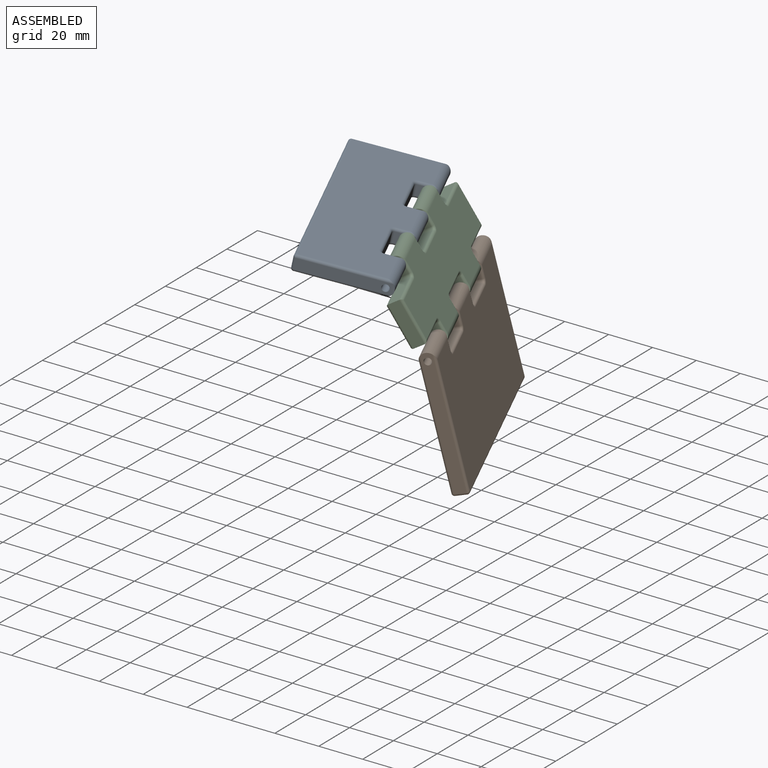
[diagram: assembled view]
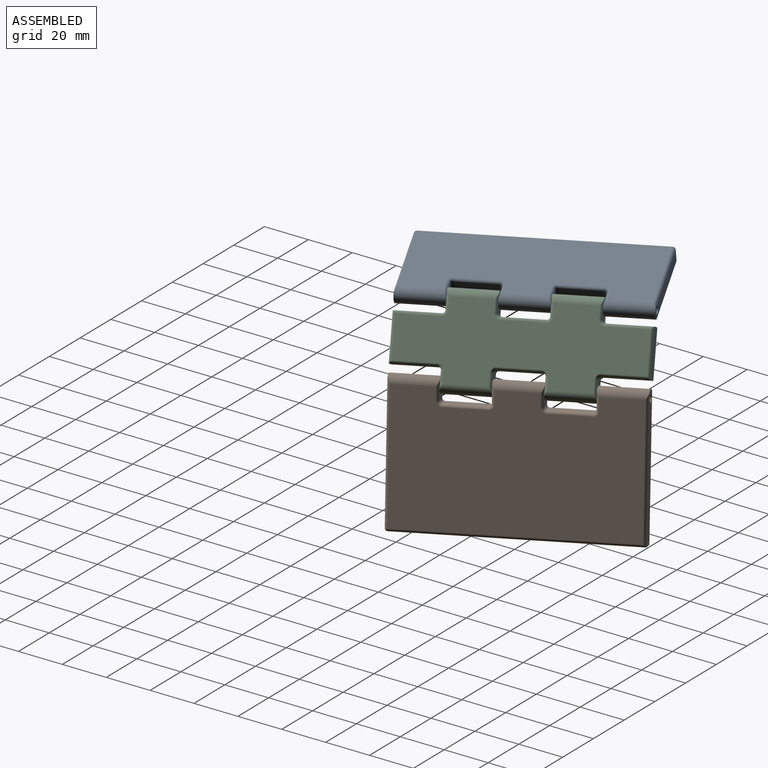
[diagram: assembled view, second angle]
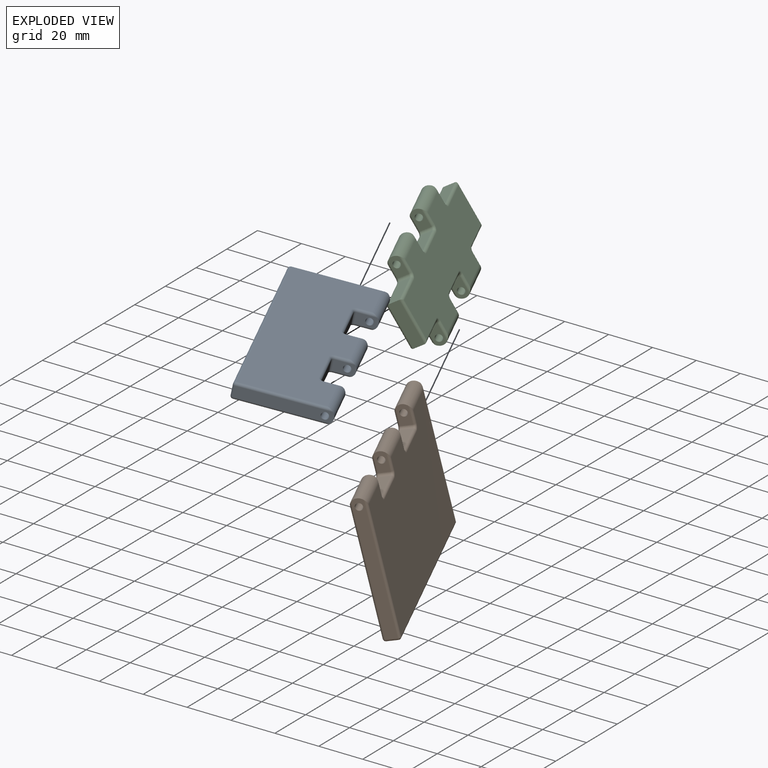
[diagram: exploded view]
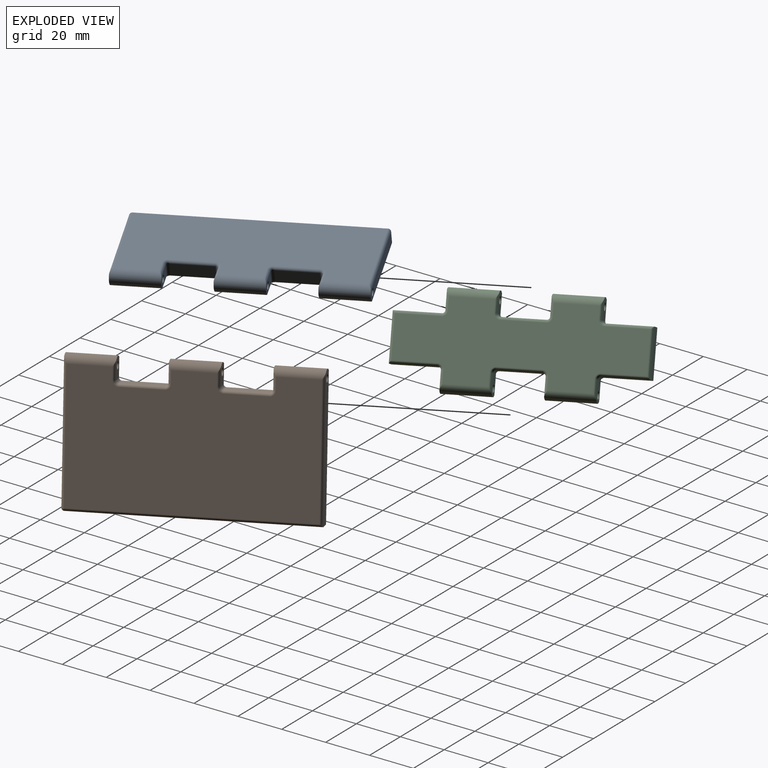
[diagram: exploded view, second angle]
ASSEMBLY  parts=3 mates=2
PART A: 53 faces, bbox 40x100x7.2 mm
  f0: plane 97.6x4.8mm, normal (1,0,0), area 468.5mm2, adj f41,f42,f46,f47
  f1: plane 38.8x4.8mm, normal (0,1,0), area 176.8mm2, adj f13,f38,f40,f41,f52
  f2: plane 8.8x4.8mm, normal (0,-1,0), area 32.8mm2, adj f13,f19,f23,f25,f52
  f3: plane 17.6x4.8mm, normal (-1,0,0), area 84.5mm2, adj f17,f18,f22,f23
  f4: plane 8.8x4.8mm, normal (0,1,0), area 32.8mm2, adj f12,f14,f16,f17,f51
  f5: plane 8.8x4.8mm, normal (0,-1,0), area 32.8mm2, adj f12,f31,f35,f37,f51
  f6: plane 17.6x4.8mm, normal (-1,0,0), area 84.5mm2, adj f29,f30,f34,f35
  f7: plane 8.8x4.8mm, normal (0,1,0), area 32.8mm2, adj f11,f26,f28,f29,f50
  f8: plane 38.8x4.8mm, normal (0,-1,0), area 176.8mm2, adj f11,f43,f47,f49,f50
  f9: plane 97.6x35.2mm, normal (0,0,1), area 3100mm2, adj f11,f12,f13,f16,f20,f22,f24,f25
  f10: plane 97.6x35.2mm, normal (0,0,-1), area 3100mm2, adj f11,f12,f13,f14,f15,f18,f19,f21
  f11: cylinder r=3.6mm len=20mm, axis (0,1,0), area 220.6mm2, adj f7,f8,f9,f10,f26,f28,f43,f49
  f12: cylinder r=3.6mm len=20mm, axis (0,1,0), area 220.6mm2, adj f4,f5,f9,f10,f14,f16,f31,f37
  f13: cylinder r=3.6mm len=20mm, axis (0,1,0), area 220.6mm2, adj f1,f2,f9,f10,f19,f25,f38,f40
  f14: cylinder r=1.2mm len=7.88mm, axis (-1,0,0), area 12.6mm2, adj f4,f10,f12,f15
  f15: torus R=2.4mm, axis (0,0,1), area 4.8mm2, adj f10,f14,f17,f18
  f16: cylinder r=1.2mm len=7.88mm, axis (1,0,0), area 12.6mm2, adj f4,f9,f12,f20
  f17: cylinder r=1.2mm len=4.8mm, axis (0,0,1), area 9mm2, adj f3,f4,f15,f20
  f18: cylinder r=1.2mm len=17.6mm, axis (0,-1,0), area 33.2mm2, adj f3,f10,f15,f21
  f19: cylinder r=1.2mm len=7.88mm, axis (1,0,0), area 12.6mm2, adj f2,f10,f13,f21
  f20: torus R=2.4mm, axis (0,0,1), area 4.8mm2, adj f9,f16,f17,f22
  f21: torus R=2.4mm, axis (0,0,1), area 4.8mm2, adj f10,f18,f19,f23
  f22: cylinder r=1.2mm len=17.6mm, axis (0,1,0), area 33.2mm2, adj f3,f9,f20,f24
  f23: cylinder r=1.2mm len=4.8mm, axis (0,0,1), area 9mm2, adj f2,f3,f21,f24
  f24: torus R=2.4mm, axis (0,0,1), area 4.8mm2, adj f9,f22,f23,f25
  f25: cylinder r=1.2mm len=7.88mm, axis (-1,0,0), area 12.6mm2, adj f2,f9,f13,f24
  f26: cylinder r=1.2mm len=7.88mm, axis (-1,0,0), area 12.6mm2, adj f7,f10,f11,f27
  f27: torus R=2.4mm, axis (0,0,1), area 4.8mm2, adj f10,f26,f29,f30
  f28: cylinder r=1.2mm len=7.88mm, axis (1,0,0), area 12.6mm2, adj f7,f9,f11,f32
  f29: cylinder r=1.2mm len=4.8mm, axis (0,0,1), area 9mm2, adj f6,f7,f27,f32
  f30: cylinder r=1.2mm len=17.6mm, axis (0,-1,0), area 33.2mm2, adj f6,f10,f27,f33
  f31: cylinder r=1.2mm len=7.88mm, axis (1,0,0), area 12.6mm2, adj f5,f10,f12,f33
  f32: torus R=2.4mm, axis (0,0,1), area 4.8mm2, adj f9,f28,f29,f34
  f33: torus R=2.4mm, axis (0,0,1), area 4.8mm2, adj f10,f30,f31,f35
  f34: cylinder r=1.2mm len=17.6mm, axis (0,1,0), area 33.2mm2, adj f6,f9,f32,f36
  f35: cylinder r=1.2mm len=4.8mm, axis (0,0,1), area 9mm2, adj f5,f6,f33,f36
  f36: torus R=2.4mm, axis (0,0,1), area 4.8mm2, adj f9,f34,f35,f37
  f37: cylinder r=1.2mm len=7.88mm, axis (-1,0,0), area 12.6mm2, adj f5,f9,f12,f36
  f38: cylinder r=1.2mm len=37.88mm, axis (-1,0,0), area 69.1mm2, adj f1,f10,f13,f39
  f39: sphere r=1.2mm, area 2.3mm2, adj f38,f41,f42
  f40: cylinder r=1.2mm len=37.88mm, axis (1,0,0), area 69.1mm2, adj f1,f9,f13,f44
  f41: cylinder r=1.2mm len=4.8mm, axis (0,0,-1), area 9mm2, adj f0,f1,f39,f44
  f42: cylinder r=1.2mm len=97.6mm, axis (0,1,0), area 184mm2, adj f0,f10,f39,f45
  f43: cylinder r=1.2mm len=37.88mm, axis (1,0,0), area 69.1mm2, adj f8,f10,f11,f45
  f44: sphere r=1.2mm, area 2.3mm2, adj f40,f41,f46
  f45: sphere r=1.2mm, area 2.3mm2, adj f42,f43,f47
  f46: cylinder r=1.2mm len=97.6mm, axis (0,-1,0), area 184mm2, adj f0,f9,f44,f48
  f47: cylinder r=1.2mm len=4.8mm, axis (0,0,-1), area 9mm2, adj f0,f8,f45,f48
  f48: sphere r=1.2mm, area 2.3mm2, adj f46,f47,f49
  f49: cylinder r=1.2mm len=37.88mm, axis (-1,0,0), area 69.1mm2, adj f8,f9,f11,f48
  f50: cylinder r=1.6mm len=20mm, axis (0,-1,0), area 201.1mm2, adj f7,f8
  f51: cylinder r=1.6mm len=20mm, axis (0,-1,0), area 201.1mm2, adj f4,f5
  f52: cylinder r=1.6mm len=20mm, axis (0,-1,0), area 201.1mm2, adj f1,f2
PART B: 50 faces, bbox 60x100x7.2 mm
  f0: plane 8.8x4.8mm, normal (0,1,0), area 32.8mm2, adj f13,f16,f26,f30,f31
  f1: plane 17.6x4.8mm, normal (1,0,0), area 84.5mm2, adj f29,f30,f34,f35
  f2: plane 8.8x4.8mm, normal (0,-1,0), area 32.8mm2, adj f12,f15,f28,f34,f37
  f3: plane 8.8x4.8mm, normal (0,1,0), area 32.8mm2, adj f12,f15,f38,f42,f43
  f4: plane 17.6x4.8mm, normal (1,0,0), area 84.5mm2, adj f41,f42,f46,f47
  f5: plane 8.8x4.8mm, normal (0,-1,0), area 32.8mm2, adj f11,f14,f40,f46,f49
  f6: plane 60x4.8mm, normal (0,1,0), area 278.6mm2, adj f7,f11,f14,f17,f21
  f7: plane 98.8x4.8mm, normal (-1,0,0), area 474.2mm2, adj f6,f19,f22,f23
  f8: plane 58.8x4.8mm, normal (0,-1,0), area 272.8mm2, adj f13,f16,f18,f22,f25
  f9: plane 97.6x55.2mm, normal (0,0,1), area 5052mm2, adj f11,f12,f13,f21,f23,f25,f31,f33
  f10: plane 97.6x55.2mm, normal (0,0,-1), area 5052mm2, adj f11,f12,f13,f17,f18,f19,f26,f27
  f11: cylinder r=3.6mm len=20mm, axis (0,-1,0), area 220.6mm2, adj f5,f6,f9,f10,f17,f21,f40,f49
  f12: cylinder r=3.6mm len=20mm, axis (0,-1,0), area 220.6mm2, adj f2,f3,f9,f10,f28,f37,f38,f43
  f13: cylinder r=3.6mm len=20mm, axis (0,-1,0), area 220.6mm2, adj f0,f8,f9,f10,f18,f25,f26,f31
  f14: cylinder r=1.6mm len=20mm, axis (0,-1,0), area 201.1mm2, adj f5,f6
  f15: cylinder r=1.6mm len=20mm, axis (0,-1,0), area 201.1mm2, adj f2,f3
  f16: cylinder r=1.6mm len=20mm, axis (0,-1,0), area 201.1mm2, adj f0,f8
  f17: cylinder r=1.2mm len=59.08mm, axis (-1,0,0), area 108.3mm2, adj f6,f10,f11,f19
  f18: cylinder r=1.2mm len=57.88mm, axis (1,0,0), area 106.8mm2, adj f8,f10,f13,f20
  f19: cylinder r=1.2mm len=98.8mm, axis (0,-1,0), area 185.4mm2, adj f7,f10,f17,f20
  f20: sphere r=1.2mm, area 2.3mm2, adj f18,f19,f22
  f21: cylinder r=1.2mm len=59.08mm, axis (1,0,0), area 108.3mm2, adj f6,f9,f11,f23
  f22: cylinder r=1.2mm len=4.8mm, axis (0,0,-1), area 9mm2, adj f7,f8,f20,f24
  f23: cylinder r=1.2mm len=98.8mm, axis (0,1,0), area 185.4mm2, adj f7,f9,f21,f24
  f24: sphere r=1.2mm, area 2.3mm2, adj f22,f23,f25
  f25: cylinder r=1.2mm len=57.88mm, axis (-1,0,0), area 106.8mm2, adj f8,f9,f13,f24
  f26: cylinder r=1.2mm len=7.88mm, axis (-1,0,0), area 12.6mm2, adj f0,f10,f13,f27
  f27: torus R=2.4mm, axis (0,0,1), area 4.8mm2, adj f10,f26,f29,f30
  f28: cylinder r=1.2mm len=7.88mm, axis (1,0,0), area 12.6mm2, adj f2,f10,f12,f32
  f29: cylinder r=1.2mm len=17.6mm, axis (0,1,0), area 33.2mm2, adj f1,f10,f27,f32
  f30: cylinder r=1.2mm len=4.8mm, axis (0,0,1), area 9mm2, adj f0,f1,f27,f33
  f31: cylinder r=1.2mm len=7.88mm, axis (1,0,0), area 12.6mm2, adj f0,f9,f13,f33
  f32: torus R=2.4mm, axis (0,0,1), area 4.8mm2, adj f10,f28,f29,f34
  f33: torus R=2.4mm, axis (0,0,1), area 4.8mm2, adj f9,f30,f31,f35
  f34: cylinder r=1.2mm len=4.8mm, axis (0,0,1), area 9mm2, adj f1,f2,f32,f36
  f35: cylinder r=1.2mm len=17.6mm, axis (0,-1,0), area 33.2mm2, adj f1,f9,f33,f36
  f36: torus R=2.4mm, axis (0,0,1), area 4.8mm2, adj f9,f34,f35,f37
  f37: cylinder r=1.2mm len=7.88mm, axis (-1,0,0), area 12.6mm2, adj f2,f9,f12,f36
  f38: cylinder r=1.2mm len=7.88mm, axis (-1,0,0), area 12.6mm2, adj f3,f10,f12,f39
  f39: torus R=2.4mm, axis (0,0,1), area 4.8mm2, adj f10,f38,f41,f42
  f40: cylinder r=1.2mm len=7.88mm, axis (1,0,0), area 12.6mm2, adj f5,f10,f11,f44
  f41: cylinder r=1.2mm len=17.6mm, axis (0,1,0), area 33.2mm2, adj f4,f10,f39,f44
  f42: cylinder r=1.2mm len=4.8mm, axis (0,0,1), area 9mm2, adj f3,f4,f39,f45
  f43: cylinder r=1.2mm len=7.88mm, axis (1,0,0), area 12.6mm2, adj f3,f9,f12,f45
  f44: torus R=2.4mm, axis (0,0,1), area 4.8mm2, adj f10,f40,f41,f46
  f45: torus R=2.4mm, axis (0,0,1), area 4.8mm2, adj f9,f42,f43,f47
  f46: cylinder r=1.2mm len=4.8mm, axis (0,0,1), area 9mm2, adj f4,f5,f44,f48
  f47: cylinder r=1.2mm len=17.6mm, axis (0,-1,0), area 33.2mm2, adj f4,f9,f45,f48
  f48: torus R=2.4mm, axis (0,0,1), area 4.8mm2, adj f9,f46,f47,f49
  f49: cylinder r=1.2mm len=7.88mm, axis (-1,0,0), area 12.6mm2, adj f5,f9,f11,f48
PART C: 82 faces, bbox 40x100x7.2 mm
  f0: plane 18.8x4.8mm, normal (-1,0,0), area 90.2mm2, adj f8,f19,f25,f30
  f1: plane 8.8x4.8mm, normal (0,1,0), area 32.8mm2, adj f18,f24,f25,f74,f81
  f2: plane 8.8x4.8mm, normal (0,-1,0), area 32.8mm2, adj f67,f70,f73,f74,f81
  f3: plane 17.6x4.8mm, normal (-1,0,0), area 84.5mm2, adj f63,f68,f69,f73
  f4: plane 8.8x4.8mm, normal (0,1,0), area 32.8mm2, adj f62,f63,f64,f75,f80
  f5: plane 8.8x4.8mm, normal (0,-1,0), area 32.8mm2, adj f34,f38,f39,f75,f80
  f6: plane 18.8x4.8mm, normal (-1,0,0), area 90.2mm2, adj f7,f35,f38,f44
  f7: plane 20x4.8mm, normal (0,-1,0), area 96mm2, adj f6,f17,f37,f47
  f8: plane 20x4.8mm, normal (0,1,0), area 96mm2, adj f0,f11,f20,f32
  f9: plane 97.6x32.8mm, normal (0,0,1), area 2262.7mm2, adj f24,f27,f29,f30,f31,f32,f33,f39
  f10: plane 97.6x32.8mm, normal (0,0,-1), area 2262.7mm2, adj f18,f19,f20,f21,f22,f23,f26,f34
  f11: plane 18.8x4.8mm, normal (1,0,0), area 90.2mm2, adj f8,f22,f28,f33
  f12: plane 8.8x4.8mm, normal (0,1,0), area 32.8mm2, adj f23,f28,f29,f76,f79
  f13: plane 8.8x4.8mm, normal (0,-1,0), area 32.8mm2, adj f50,f52,f53,f76,f79
  f14: plane 17.6x4.8mm, normal (1,0,0), area 84.5mm2, adj f53,f54,f58,f59
  f15: plane 8.8x4.8mm, normal (0,1,0), area 32.8mm2, adj f55,f59,f61,f77,f78
  f16: plane 8.8x4.8mm, normal (0,-1,0), area 32.8mm2, adj f40,f45,f46,f77,f78
  f17: plane 18.8x4.8mm, normal (1,0,0), area 90.2mm2, adj f7,f41,f46,f49
  f18: cylinder r=1.2mm len=7.88mm, axis (-1,0,0), area 12.6mm2, adj f1,f10,f21,f74
  f19: cylinder r=1.2mm len=18.8mm, axis (0,-1,0), area 34.6mm2, adj f0,f10,f20,f21
  f20: cylinder r=1.2mm len=20mm, axis (-1,0,0), area 36.1mm2, adj f8,f10,f19,f22
  f21: torus R=2.4mm, axis (0,0,1), area 4.8mm2, adj f10,f18,f19,f25
  f22: cylinder r=1.2mm len=18.8mm, axis (0,-1,0), area 34.6mm2, adj f10,f11,f20,f26
  f23: cylinder r=1.2mm len=7.88mm, axis (1,0,0), area 12.6mm2, adj f10,f12,f26,f76
  f24: cylinder r=1.2mm len=7.88mm, axis (1,0,0), area 12.6mm2, adj f1,f9,f27,f74
  f25: cylinder r=1.2mm len=4.8mm, axis (0,0,1), area 9mm2, adj f0,f1,f21,f27
  f26: torus R=2.4mm, axis (0,0,1), area 4.8mm2, adj f10,f22,f23,f28
  f27: torus R=2.4mm, axis (0,0,1), area 4.8mm2, adj f9,f24,f25,f30
  f28: cylinder r=1.2mm len=4.8mm, axis (0,0,1), area 9mm2, adj f11,f12,f26,f31
  f29: cylinder r=1.2mm len=7.88mm, axis (-1,0,0), area 12.6mm2, adj f9,f12,f31,f76
  f30: cylinder r=1.2mm len=18.8mm, axis (0,1,0), area 34.6mm2, adj f0,f9,f27,f32
  f31: torus R=2.4mm, axis (0,0,1), area 4.8mm2, adj f9,f28,f29,f33
  f32: cylinder r=1.2mm len=20mm, axis (1,0,0), area 36.1mm2, adj f8,f9,f30,f33
  f33: cylinder r=1.2mm len=18.8mm, axis (0,1,0), area 34.6mm2, adj f9,f11,f31,f32
  f34: cylinder r=1.2mm len=7.88mm, axis (1,0,0), area 12.6mm2, adj f5,f10,f36,f75
  f35: cylinder r=1.2mm len=18.8mm, axis (0,-1,0), area 34.6mm2, adj f6,f10,f36,f37
  f36: torus R=2.4mm, axis (0,0,1), area 4.8mm2, adj f10,f34,f35,f38
  f37: cylinder r=1.2mm len=20mm, axis (1,0,0), area 36.1mm2, adj f7,f10,f35,f41
  f38: cylinder r=1.2mm len=4.8mm, axis (0,0,1), area 9mm2, adj f5,f6,f36,f42
  f39: cylinder r=1.2mm len=7.88mm, axis (-1,0,0), area 12.6mm2, adj f5,f9,f42,f75
  f40: cylinder r=1.2mm len=7.88mm, axis (-1,0,0), area 12.6mm2, adj f10,f16,f43,f77
  f41: cylinder r=1.2mm len=18.8mm, axis (0,-1,0), area 34.6mm2, adj f10,f17,f37,f43
  f42: torus R=2.4mm, axis (0,0,1), area 4.8mm2, adj f9,f38,f39,f44
  f43: torus R=2.4mm, axis (0,0,1), area 4.8mm2, adj f10,f40,f41,f46
  f44: cylinder r=1.2mm len=18.8mm, axis (0,1,0), area 34.6mm2, adj f6,f9,f42,f47
  f45: cylinder r=1.2mm len=7.88mm, axis (1,0,0), area 12.6mm2, adj f9,f16,f48,f77
  f46: cylinder r=1.2mm len=4.8mm, axis (0,0,1), area 9mm2, adj f16,f17,f43,f48
  f47: cylinder r=1.2mm len=20mm, axis (-1,0,0), area 36.1mm2, adj f7,f9,f44,f49
  f48: torus R=2.4mm, axis (0,0,1), area 4.8mm2, adj f9,f45,f46,f49
  f49: cylinder r=1.2mm len=18.8mm, axis (0,1,0), area 34.6mm2, adj f9,f17,f47,f48
  f50: cylinder r=1.2mm len=7.88mm, axis (-1,0,0), area 12.6mm2, adj f10,f13,f51,f76
  f51: torus R=2.4mm, axis (0,0,1), area 4.8mm2, adj f10,f50,f53,f54
  f52: cylinder r=1.2mm len=7.88mm, axis (1,0,0), area 12.6mm2, adj f9,f13,f56,f76
  f53: cylinder r=1.2mm len=4.8mm, axis (0,0,1), area 9mm2, adj f13,f14,f51,f56
  f54: cylinder r=1.2mm len=17.6mm, axis (0,-1,0), area 33.2mm2, adj f10,f14,f51,f57
  f55: cylinder r=1.2mm len=7.88mm, axis (1,0,0), area 12.6mm2, adj f10,f15,f57,f77
  f56: torus R=2.4mm, axis (0,0,1), area 4.8mm2, adj f9,f52,f53,f58
  f57: torus R=2.4mm, axis (0,0,1), area 4.8mm2, adj f10,f54,f55,f59
  f58: cylinder r=1.2mm len=17.6mm, axis (0,1,0), area 33.2mm2, adj f9,f14,f56,f60
  f59: cylinder r=1.2mm len=4.8mm, axis (0,0,1), area 9mm2, adj f14,f15,f57,f60
  f60: torus R=2.4mm, axis (0,0,1), area 4.8mm2, adj f9,f58,f59,f61
  f61: cylinder r=1.2mm len=7.88mm, axis (-1,0,0), area 12.6mm2, adj f9,f15,f60,f77
  f62: cylinder r=1.2mm len=7.88mm, axis (1,0,0), area 12.6mm2, adj f4,f9,f65,f75
  f63: cylinder r=1.2mm len=4.8mm, axis (0,0,1), area 9mm2, adj f3,f4,f65,f66
  f64: cylinder r=1.2mm len=7.88mm, axis (-1,0,0), area 12.6mm2, adj f4,f10,f66,f75
  f65: torus R=2.4mm, axis (0,0,1), area 4.8mm2, adj f9,f62,f63,f68
  f66: torus R=2.4mm, axis (0,0,1), area 4.8mm2, adj f10,f63,f64,f69
  f67: cylinder r=1.2mm len=7.88mm, axis (-1,0,0), area 12.6mm2, adj f2,f9,f71,f74
  f68: cylinder r=1.2mm len=17.6mm, axis (0,1,0), area 33.2mm2, adj f3,f9,f65,f71
  f69: cylinder r=1.2mm len=17.6mm, axis (0,-1,0), area 33.2mm2, adj f3,f10,f66,f72
  f70: cylinder r=1.2mm len=7.88mm, axis (1,0,0), area 12.6mm2, adj f2,f10,f72,f74
  f71: torus R=2.4mm, axis (0,0,1), area 4.8mm2, adj f9,f67,f68,f73
  f72: torus R=2.4mm, axis (0,0,1), area 4.8mm2, adj f10,f69,f70,f73
  f73: cylinder r=1.2mm len=4.8mm, axis (0,0,1), area 9mm2, adj f2,f3,f71,f72
  f74: cylinder r=3.6mm len=20mm, axis (0,1,0), area 220.6mm2, adj f1,f2,f9,f10,f18,f24,f67,f70
  f75: cylinder r=3.6mm len=20mm, axis (0,1,0), area 220.6mm2, adj f4,f5,f9,f10,f34,f39,f62,f64
  f76: cylinder r=3.6mm len=20mm, axis (0,1,0), area 220.6mm2, adj f9,f10,f12,f13,f23,f29,f50,f52
  f77: cylinder r=3.6mm len=20mm, axis (0,1,0), area 220.6mm2, adj f9,f10,f15,f16,f40,f45,f55,f61
  f78: cylinder r=1.6mm len=20mm, axis (0,-1,0), area 201.1mm2, adj f15,f16
  f79: cylinder r=1.6mm len=20mm, axis (0,-1,0), area 201.1mm2, adj f12,f13
  f80: cylinder r=1.6mm len=20mm, axis (0,-1,0), area 201.1mm2, adj f4,f5
  f81: cylinder r=1.6mm len=20mm, axis (0,-1,0), area 201.1mm2, adj f1,f2
PLACE A rot(axis=(0.2,-0.98,0.01),168.8deg) t=(-110.79,-33.09,1.33)mm
PLACE B rot(axis=(0.21,-0.97,0.14),104.1deg) t=(-142.86,-46.12,-16.7)mm
PLACE C rot(axis=(0.21,-0.97,0.1),119.7deg) t=(-138.96,-44.16,-26.46)mm
MATE revolute A.f12 <-> C.f78  axis (0.39,-0.92,-0.03) through (-159.78,-54.08,8.11)mm
MATE revolute B.f14 <-> C.f80  axis (0.39,-0.92,-0.03) through (-145.42,-47.07,-20.99)mm
